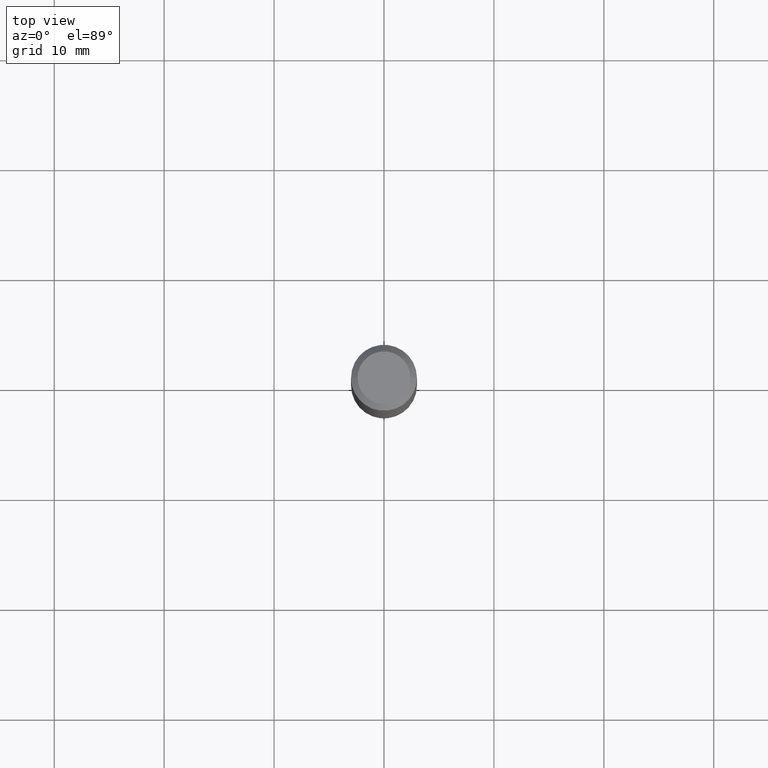
[diagram: clean part render]
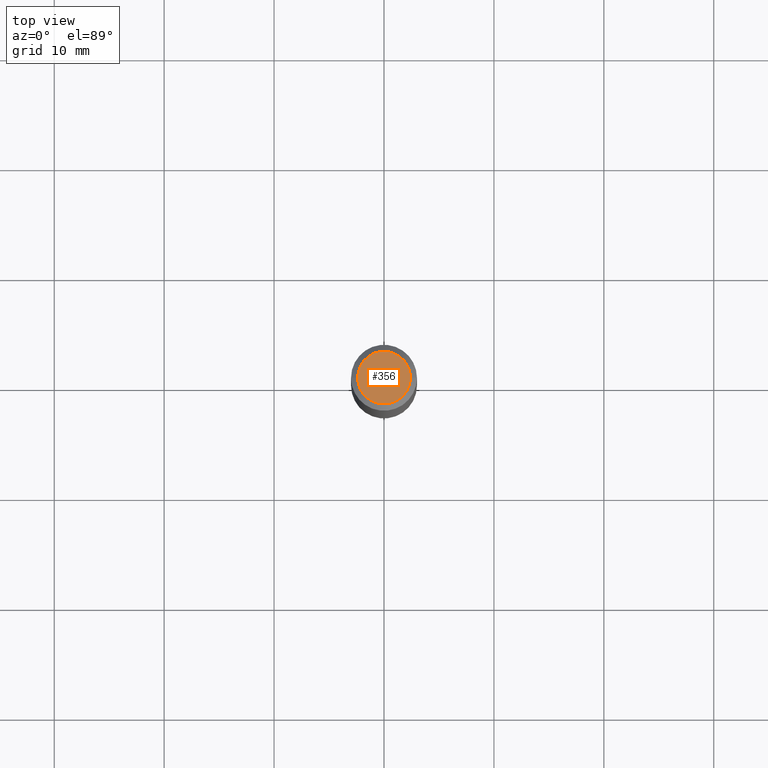
[diagram: same view with one face highlighted and labeled with its STEP entity id]
A machine part, top view. The second image highlights one B-rep face of the part: STEP entity #356.
In plain terms, the highlighted planar face has unit normal (0, -0, -1).
Its self-contained STEP definition (entity closure, byte-faithful):
#5 = EDGE_CURVE ( 'NONE', #446, #485, #107, .T. ) ;
#12 = DIRECTION ( 'NONE',  ( -2.445468806185136597E-29, 3.491481338843145583E-15, 1.000000000000000000 ) ) ;
#23 = CARTESIAN_POINT ( 'NONE',  ( -0.09447999999999998066, 7.009847083995354710E-16, -1.928573779297727792E-17 ) ) ;
#51 = DIRECTION ( 'NONE',  ( -1.000000000000000000, 6.982962677686265922E-15, -4.876176775795935793E-29 ) ) ;
#90 = DIRECTION ( 'NONE',  ( 2.438088387897960049E-29, -3.491481338843145188E-15, -1.000000000000000000 ) ) ;
#93 = CARTESIAN_POINT ( 'NONE',  ( 4.716267017698007905E-46, -6.733579360998555036E-32, -1.928573779297252010E-17 ) ) ;
#107 = CIRCLE ( 'NONE', #252, 0.09447999999999998066 ) ;
#122 = ORIENTED_EDGE ( 'NONE', *, *, #5, .T. ) ;
#133 = CARTESIAN_POINT ( 'NONE',  ( 2.358133508849003952E-46, -3.366789680499277518E-32, -9.642868896486260050E-18 ) ) ;
#137 = FACE_OUTER_BOUND ( 'NONE', #188, .T. ) ;
#188 = EDGE_LOOP ( 'NONE', ( #122, #190 ) ) ;
#190 = ORIENTED_EDGE ( 'NONE', *, *, #261, .T. ) ;
#252 = AXIS2_PLACEMENT_3D ( 'NONE', #93, #12, #271 ) ;
#261 = EDGE_CURVE ( 'NONE', #485, #446, #426, .T. ) ;
#271 = DIRECTION ( 'NONE',  ( 1.000000000000000000, -6.982962677686267499E-15, 4.875432709231658792E-29 ) ) ;
#283 = PLANE ( 'NONE',  #319 ) ;
#296 = DIRECTION ( 'NONE',  ( 1.000000000000000000, -6.982962677686267499E-15, 4.875432709231658792E-29 ) ) ;
#319 = AXIS2_PLACEMENT_3D ( 'NONE', #133, #90, #51 ) ;
#346 = AXIS2_PLACEMENT_3D ( 'NONE', #484, #354, #296 ) ;
#354 = DIRECTION ( 'NONE',  ( -2.445468806185136597E-29, 3.491481338843145583E-15, 1.000000000000000000 ) ) ;
#356 = ADVANCED_FACE ( 'NONE', ( #137 ), #283, .F. ) ;
#426 = CIRCLE ( 'NONE', #346, 0.09447999999999998066 ) ;
#428 = CARTESIAN_POINT ( 'NONE',  ( 0.09447999999999998066, -7.704367267948738690E-16, -1.928573779296752193E-17 ) ) ;
#446 = VERTEX_POINT ( 'NONE', #23 ) ;
#484 = CARTESIAN_POINT ( 'NONE',  ( 4.716267017698007905E-46, -6.733579360998555036E-32, -1.928573779297252010E-17 ) ) ;
#485 = VERTEX_POINT ( 'NONE', #428 ) ;